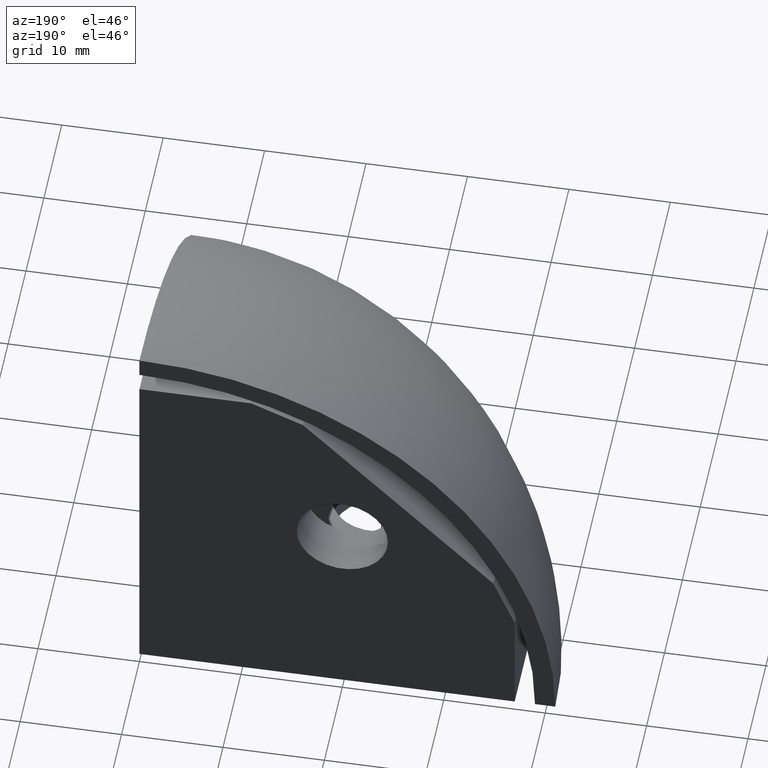
[diagram: clean part render]
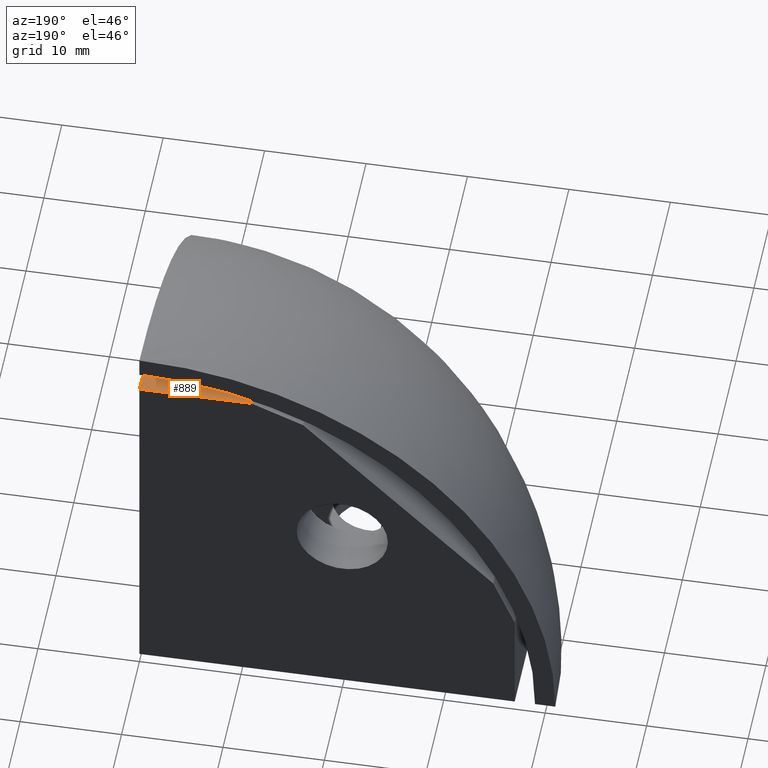
[diagram: same view with one face highlighted and labeled with its STEP entity id]
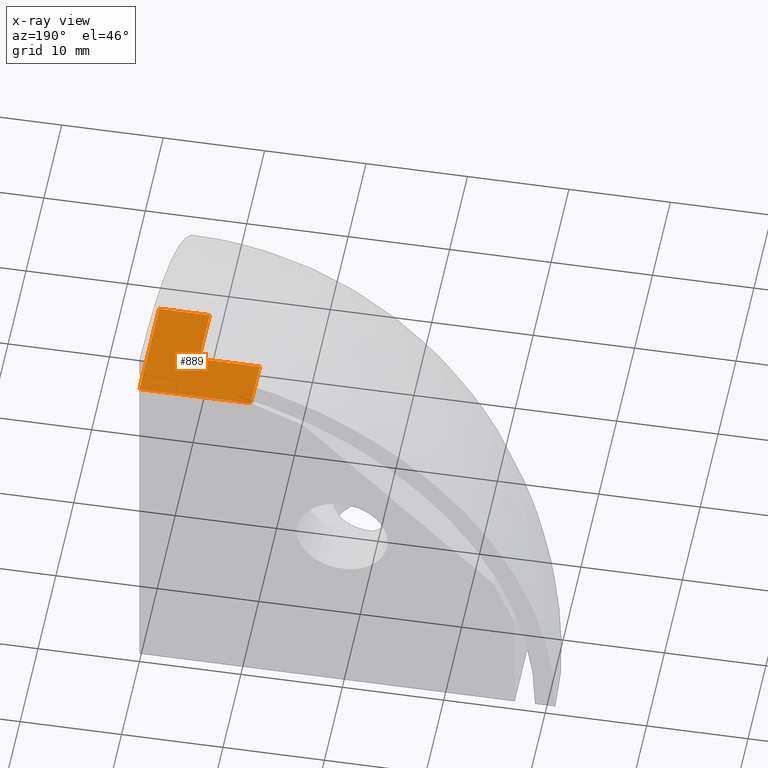
[diagram: x-ray of the same camera — body ghosted, the highlighted face saturated]
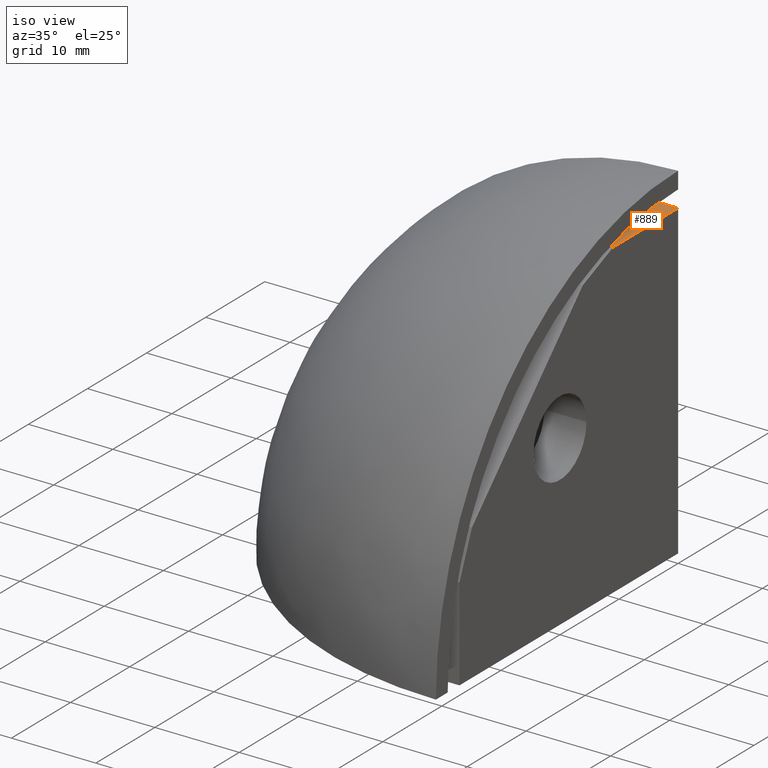
[diagram: same view with one face highlighted and labeled with its STEP entity id]
A machine part, auxiliary view. The second image highlights one B-rep face of the part: STEP entity #889.
The next image is the same camera in x-ray: the body ghosted, the highlighted face saturated — about 0% of this face is hidden behind the body in this view.
A second angle (iso view) of the same face is appended — the face is thin or edge-on in the first view.
In plain terms, the highlighted planar face has unit normal (0, 0, 1).
Its self-contained STEP definition (entity closure, byte-faithful):
#317=CARTESIAN_POINT('',(0.0,0.0,37.0));
#318=VERTEX_POINT('',#317);
#325=CARTESIAN_POINT('',(0.0,-11.0,37.0));
#326=VERTEX_POINT('',#325);
#327=CARTESIAN_POINT('',(0.0,-11.0,37.0));
#328=DIRECTION('',(0.0,1.0,0.0));
#329=VECTOR('',#328,11.0);
#330=LINE('',#327,#329);
#331=EDGE_CURVE('',#326,#318,#330,.T.);
#398=CARTESIAN_POINT('',(-5.0,-11.0,37.0));
#399=VERTEX_POINT('',#398);
#400=CARTESIAN_POINT('',(-5.0,-11.0,37.0));
#401=DIRECTION('',(1.0,0.0,0.0));
#402=VECTOR('',#401,5.0);
#403=LINE('',#400,#402);
#404=EDGE_CURVE('',#399,#326,#403,.T.);
#420=CARTESIAN_POINT('',(-5.0,-5.0,37.0));
#421=VERTEX_POINT('',#420);
#461=CARTESIAN_POINT('',(-5.0,-11.0,37.0));
#462=DIRECTION('',(0.0,1.0,0.0));
#463=VECTOR('',#462,6.0);
#464=LINE('',#461,#463);
#465=EDGE_CURVE('',#399,#421,#464,.T.);
#707=CARTESIAN_POINT('',(-11.000000000000007,-5.0,37.0));
#708=VERTEX_POINT('',#707);
#709=CARTESIAN_POINT('',(-5.0,-5.0,37.0));
#710=DIRECTION('',(-1.0,0.0,0.0));
#711=VECTOR('',#710,6.000000000000007);
#712=LINE('',#709,#711);
#713=EDGE_CURVE('',#421,#708,#712,.T.);
#818=CARTESIAN_POINT('',(-11.000000000000007,7.105427E-015,37.0));
#819=VERTEX_POINT('',#818);
#826=CARTESIAN_POINT('',(0.0,0.0,37.0));
#827=DIRECTION('',(-1.0,0.0,0.0));
#828=VECTOR('',#827,11.000000000000007);
#829=LINE('',#826,#828);
#830=EDGE_CURVE('',#318,#819,#829,.T.);
#867=CARTESIAN_POINT('',(-11.000000000000007,7.105427E-015,37.0));
#868=DIRECTION('',(0.0,-1.0,0.0));
#869=VECTOR('',#868,5.000000000000007);
#870=LINE('',#867,#869);
#871=EDGE_CURVE('',#819,#708,#870,.T.);
#876=CARTESIAN_POINT('',(-40.700000745611902,-40.700000675221041,37.0));
#877=DIRECTION('',(0.0,0.0,1.0));
#878=DIRECTION('',(1.0,0.0,0.0));
#879=AXIS2_PLACEMENT_3D('',#876,#877,#878);
#880=PLANE('',#879);
#881=ORIENTED_EDGE('',*,*,#830,.T.);
#882=ORIENTED_EDGE('',*,*,#871,.T.);
#883=ORIENTED_EDGE('',*,*,#713,.F.);
#884=ORIENTED_EDGE('',*,*,#465,.F.);
#885=ORIENTED_EDGE('',*,*,#404,.T.);
#886=ORIENTED_EDGE('',*,*,#331,.T.);
#887=EDGE_LOOP('',(#881,#882,#883,#884,#885,#886));
#888=FACE_OUTER_BOUND('',#887,.T.);
#889=ADVANCED_FACE('',(#888),#880,.T.);